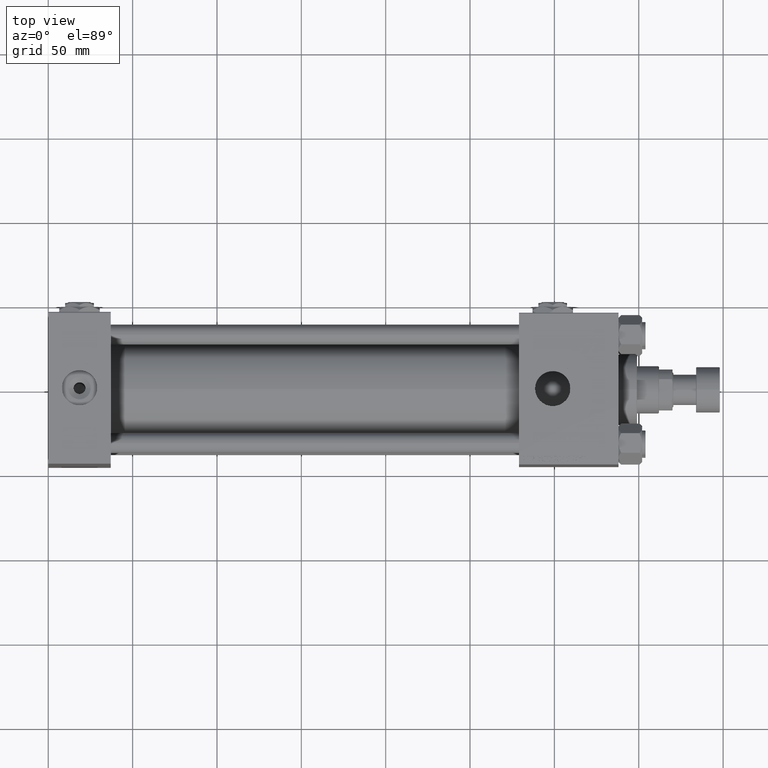
[diagram: clean part render]
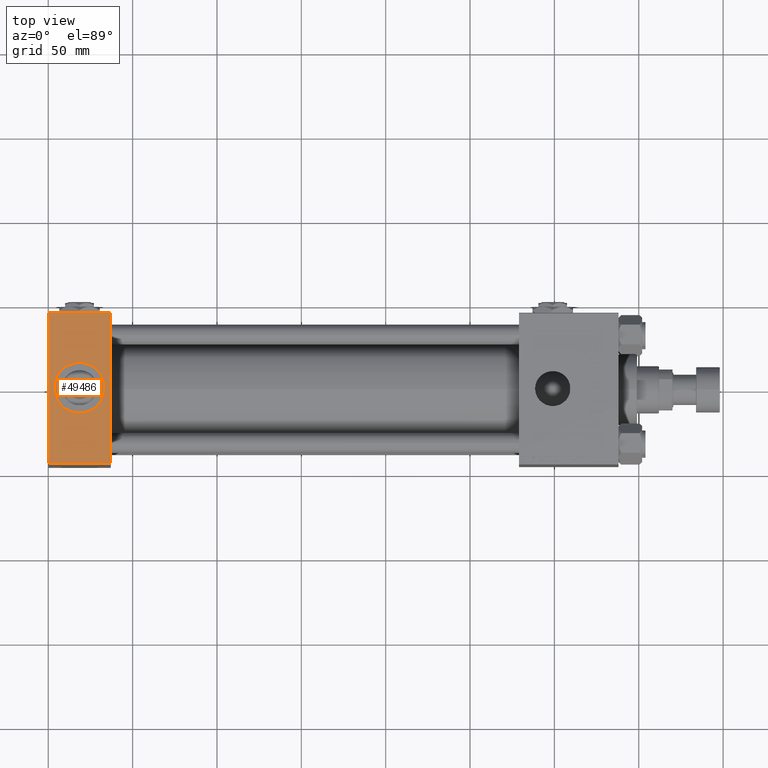
[diagram: same view with one face highlighted and labeled with its STEP entity id]
A machine part, top view. The second image highlights one B-rep face of the part: STEP entity #49486.
In plain terms, the highlighted planar face has unit normal (0, 0, -1).
Its self-contained STEP definition (entity closure, byte-faithful):
#1458 = VERTEX_POINT ( 'NONE', #48712 ) ;
#1769 = AXIS2_PLACEMENT_3D ( 'NONE', #16480, #8250, #28697 ) ;
#2659 = CIRCLE ( 'NONE', #1769, 15.00000000000000355 ) ;
#3346 = CARTESIAN_POINT ( 'NONE',  ( 0.000000000000000000, 45.00000000000000711, 71.00000000000000000 ) ) ;
#3807 = VERTEX_POINT ( 'NONE', #44019 ) ;
#6412 = DIRECTION ( 'NONE',  ( 1.000000000000000000, 0.000000000000000000, 0.000000000000000000 ) ) ;
#6737 = CARTESIAN_POINT ( 'NONE',  ( 0.000000000000000000, -44.49999999999999289, 70.99999999999998579 ) ) ;
#8250 = DIRECTION ( 'NONE',  ( 0.000000000000000000, 0.000000000000000000, 1.000000000000000000 ) ) ;
#9235 = EDGE_CURVE ( 'NONE', #14423, #44929, #51351, .T. ) ;
#10183 = CARTESIAN_POINT ( 'NONE',  ( 37.00000000000000000, 44.50000000000000711, 71.00000000000000000 ) ) ;
#11564 = ORIENTED_EDGE ( 'NONE', *, *, #29793, .F. ) ;
#11584 = LINE ( 'NONE', #3346, #18806 ) ;
#13325 = CARTESIAN_POINT ( 'NONE',  ( 37.00000000000000000, 45.00000000000000711, 71.00000000000000000 ) ) ;
#14196 = EDGE_LOOP ( 'NONE', ( #14982, #49819 ) ) ;
#14294 = VERTEX_POINT ( 'NONE', #10183 ) ;
#14423 = VERTEX_POINT ( 'NONE', #6737 ) ;
#14982 = ORIENTED_EDGE ( 'NONE', *, *, #29798, .F. ) ;
#15084 = CARTESIAN_POINT ( 'NONE',  ( 0.000000000000000000, 44.50000000000000711, 71.00000000000000000 ) ) ;
#16480 = CARTESIAN_POINT ( 'NONE',  ( 18.50000000000000000, -1.268275607991932333E-14, 70.99999999999998579 ) ) ;
#17037 = DIRECTION ( 'NONE',  ( 0.000000000000000000, 1.000000000000000000, 1.541976423090495633E-16 ) ) ;
#17297 = FACE_OUTER_BOUND ( 'NONE', #25965, .T. ) ;
#18622 = CARTESIAN_POINT ( 'NONE',  ( 18.50000000000000000, -1.268275607991932333E-14, 70.99999999999998579 ) ) ;
#18806 = VECTOR ( 'NONE', #31765, 1000.000000000000000 ) ;
#21835 = CARTESIAN_POINT ( 'NONE',  ( 37.00000000000000000, -44.49999999999999289, 70.99999999999998579 ) ) ;
#22984 = AXIS2_PLACEMENT_3D ( 'NONE', #13325, #30041, #17037 ) ;
#23690 = DIRECTION ( 'NONE',  ( 1.000000000000000000, 0.000000000000000000, 0.000000000000000000 ) ) ;
#25049 = AXIS2_PLACEMENT_3D ( 'NONE', #18622, #43055, #6412 ) ;
#25965 = EDGE_LOOP ( 'NONE', ( #49953, #52196, #11564, #45798 ) ) ;
#26278 = EDGE_CURVE ( 'NONE', #1458, #14423, #11584, .T. ) ;
#27376 = CARTESIAN_POINT ( 'NONE',  ( 3.499999999999997780, -1.084578588119829295E-14, 70.99999999999998579 ) ) ;
#28430 = CIRCLE ( 'NONE', #25049, 15.00000000000000355 ) ;
#28697 = DIRECTION ( 'NONE',  ( 1.000000000000000000, 0.000000000000000000, 0.000000000000000000 ) ) ;
#29219 = VECTOR ( 'NONE', #23690, 1000.000000000000000 ) ;
#29793 = EDGE_CURVE ( 'NONE', #14294, #44929, #46518, .T. ) ;
#29798 = EDGE_CURVE ( 'NONE', #3807, #37627, #28430, .T. ) ;
#30041 = DIRECTION ( 'NONE',  ( 0.000000000000000000, 1.541976423090495633E-16, -1.000000000000000000 ) ) ;
#31765 = DIRECTION ( 'NONE',  ( 0.000000000000000000, -1.000000000000000000, -1.541976423090495387E-16 ) ) ;
#35520 = LINE ( 'NONE', #15084, #37242 ) ;
#37242 = VECTOR ( 'NONE', #39768, 1000.000000000000000 ) ;
#37627 = VERTEX_POINT ( 'NONE', #27376 ) ;
#39650 = CARTESIAN_POINT ( 'NONE',  ( 37.00000000000000000, -44.50000000000002132, 70.99999999999998579 ) ) ;
#39768 = DIRECTION ( 'NONE',  ( -1.000000000000000000, 0.000000000000000000, 0.000000000000000000 ) ) ;
#42511 = PLANE ( 'NONE',  #22984 ) ;
#42787 = CARTESIAN_POINT ( 'NONE',  ( 37.00000000000000000, 45.00000000000000711, 71.00000000000000000 ) ) ;
#43055 = DIRECTION ( 'NONE',  ( 0.000000000000000000, 0.000000000000000000, 1.000000000000000000 ) ) ;
#44019 = CARTESIAN_POINT ( 'NONE',  ( 33.50000000000000000, -1.268275607991932333E-14, 70.99999999999998579 ) ) ;
#44929 = VERTEX_POINT ( 'NONE', #21835 ) ;
#45532 = EDGE_CURVE ( 'NONE', #14294, #1458, #35520, .T. ) ;
#45798 = ORIENTED_EDGE ( 'NONE', *, *, #45532, .T. ) ;
#46518 = LINE ( 'NONE', #42787, #47961 ) ;
#47315 = DIRECTION ( 'NONE',  ( 0.000000000000000000, -1.000000000000000000, -1.541976423090495387E-16 ) ) ;
#47961 = VECTOR ( 'NONE', #47315, 1000.000000000000000 ) ;
#48712 = CARTESIAN_POINT ( 'NONE',  ( 0.000000000000000000, 44.50000000000000711, 71.00000000000000000 ) ) ;
#49486 = ADVANCED_FACE ( 'NONE', ( #50503, #17297 ), #42511, .F. ) ;
#49819 = ORIENTED_EDGE ( 'NONE', *, *, #50746, .F. ) ;
#49953 = ORIENTED_EDGE ( 'NONE', *, *, #26278, .T. ) ;
#50503 = FACE_BOUND ( 'NONE', #14196, .T. ) ;
#50746 = EDGE_CURVE ( 'NONE', #37627, #3807, #2659, .T. ) ;
#51351 = LINE ( 'NONE', #39650, #29219 ) ;
#52196 = ORIENTED_EDGE ( 'NONE', *, *, #9235, .T. ) ;